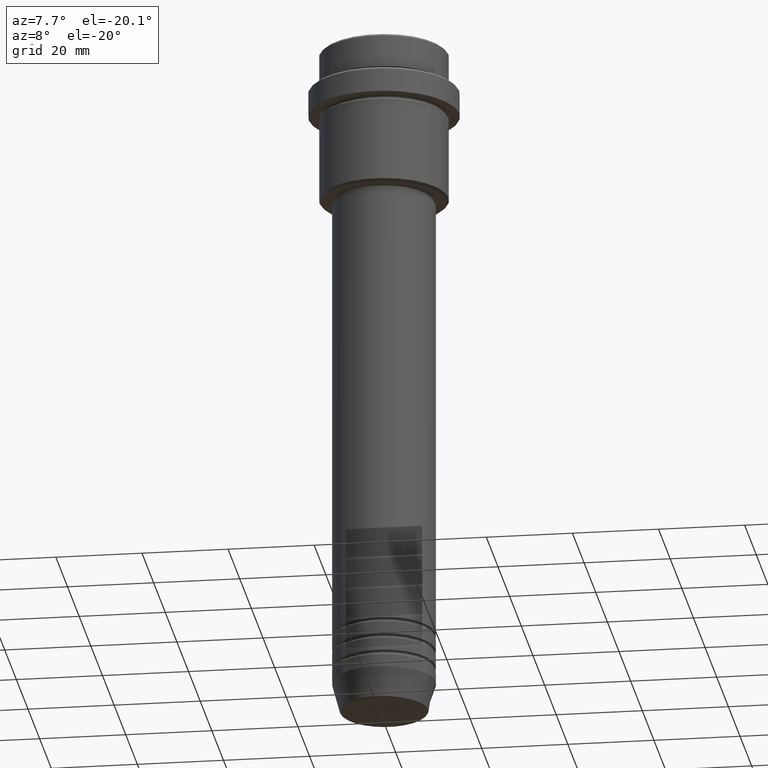
[diagram: clean part render]
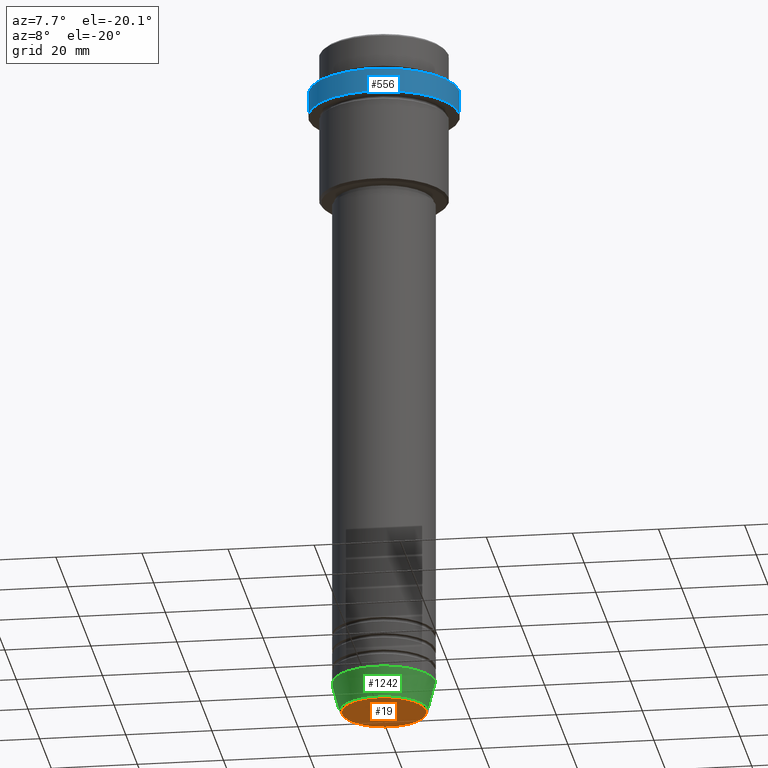
[diagram: same view with three faces highlighted in distinct colors, each labeled with its STEP entity id]
A machine part, auxiliary view with three faces highlighted in distinct colors.
Their STEP definitions:

[orange] entity #19 — the highlighted planar face has unit normal (0, -0, 1).
#7 = EDGE_CURVE ( 'NONE', #669, #570, #861, .T. ) ;
#19 = ADVANCED_FACE ( 'NONE', ( #1362 ), #922, .F. ) ;
#32 = CARTESIAN_POINT ( 'NONE',  ( 0.000000000000000000, 0.000000000000000000, -160.9999999999999716 ) ) ;
#115 = CARTESIAN_POINT ( 'NONE',  ( 0.000000000000000000, 0.000000000000000000, -160.9999999999999716 ) ) ;
#390 = EDGE_CURVE ( 'NONE', #570, #669, #1404, .T. ) ;
#444 = DIRECTION ( 'NONE',  ( 0.000000000000000000, 0.000000000000000000, -1.000000000000000000 ) ) ;
#480 = EDGE_LOOP ( 'NONE', ( #988, #1346 ) ) ;
#484 = DIRECTION ( 'NONE',  ( 1.000000000000000000, 0.000000000000000000, 0.000000000000000000 ) ) ;
#506 = CARTESIAN_POINT ( 'NONE',  ( 9.740692158992667160, 0.000000000000000000, -160.9999999999999716 ) ) ;
#541 = CARTESIAN_POINT ( 'NONE',  ( -9.740692158992667160, 1.222463696683475393E-15, -160.9999999999999716 ) ) ;
#570 = VERTEX_POINT ( 'NONE', #506 ) ;
#596 = CARTESIAN_POINT ( 'NONE',  ( 0.000000000000000000, 0.000000000000000000, -160.9999999999999716 ) ) ;
#627 = AXIS2_PLACEMENT_3D ( 'NONE', #32, #688, #1027 ) ;
#653 = AXIS2_PLACEMENT_3D ( 'NONE', #115, #444, #885 ) ;
#669 = VERTEX_POINT ( 'NONE', #541 ) ;
#688 = DIRECTION ( 'NONE',  ( 0.000000000000000000, 0.000000000000000000, -1.000000000000000000 ) ) ;
#861 = CIRCLE ( 'NONE', #627, 9.740692158992667160 ) ;
#885 = DIRECTION ( 'NONE',  ( 1.000000000000000000, 0.000000000000000000, 0.000000000000000000 ) ) ;
#922 = PLANE ( 'NONE',  #1130 ) ;
#988 = ORIENTED_EDGE ( 'NONE', *, *, #390, .T. ) ;
#1027 = DIRECTION ( 'NONE',  ( 1.000000000000000000, 0.000000000000000000, 0.000000000000000000 ) ) ;
#1130 = AXIS2_PLACEMENT_3D ( 'NONE', #596, #1232, #484 ) ;
#1232 = DIRECTION ( 'NONE',  ( 0.000000000000000000, -0.000000000000000000, 1.000000000000000000 ) ) ;
#1346 = ORIENTED_EDGE ( 'NONE', *, *, #7, .T. ) ;
#1362 = FACE_OUTER_BOUND ( 'NONE', #480, .T. ) ;
#1404 = CIRCLE ( 'NONE', #653, 9.740692158992667160 ) ;

[blue] entity #556 — the highlighted cylindrical surface (partial cylindrical patch) has radius 17.5 mm, axis along (-0, -0, 1).
#40 = AXIS2_PLACEMENT_3D ( 'NONE', #1303, #247, #881 ) ;
#77 = EDGE_CURVE ( 'NONE', #876, #202, #1286, .T. ) ;
#119 = VERTEX_POINT ( 'NONE', #1244 ) ;
#202 = VERTEX_POINT ( 'NONE', #1173 ) ;
#247 = DIRECTION ( 'NONE',  ( -0.000000000000000000, -0.000000000000000000, 1.000000000000000000 ) ) ;
#250 = CARTESIAN_POINT ( 'NONE',  ( 17.50000000000000000, 0.000000000000000000, -9.500000000000014211 ) ) ;
#315 = CARTESIAN_POINT ( 'NONE',  ( -17.50000000000000000, 2.143131898507868248E-15, -15.00000000000000000 ) ) ;
#340 = VERTEX_POINT ( 'NONE', #315 ) ;
#367 = CARTESIAN_POINT ( 'NONE',  ( 0.000000000000000000, 0.000000000000000000, -9.500000000000014211 ) ) ;
#385 = VECTOR ( 'NONE', #1176, 1000.000000000000000 ) ;
#405 = DIRECTION ( 'NONE',  ( -0.000000000000000000, -0.000000000000000000, 1.000000000000000000 ) ) ;
#418 = LINE ( 'NONE', #1061, #1025 ) ;
#482 = DIRECTION ( 'NONE',  ( -0.000000000000000000, -0.000000000000000000, 1.000000000000000000 ) ) ;
#489 = AXIS2_PLACEMENT_3D ( 'NONE', #367, #805, #1237 ) ;
#509 = ORIENTED_EDGE ( 'NONE', *, *, #1218, .T. ) ;
#556 = ADVANCED_FACE ( 'NONE', ( #825 ), #1032, .T. ) ;
#739 = CARTESIAN_POINT ( 'NONE',  ( 17.50000000000000000, 0.000000000000000000, 0.000000000000000000 ) ) ;
#805 = DIRECTION ( 'NONE',  ( 0.000000000000000000, 0.000000000000000000, -1.000000000000000000 ) ) ;
#825 = FACE_OUTER_BOUND ( 'NONE', #869, .T. ) ;
#832 = DIRECTION ( 'NONE',  ( 1.000000000000000000, 0.000000000000000000, 0.000000000000000000 ) ) ;
#869 = EDGE_LOOP ( 'NONE', ( #1009, #509, #1077, #887 ) ) ;
#876 = VERTEX_POINT ( 'NONE', #250 ) ;
#881 = DIRECTION ( 'NONE',  ( 1.000000000000000000, 0.000000000000000000, 0.000000000000000000 ) ) ;
#887 = ORIENTED_EDGE ( 'NONE', *, *, #77, .T. ) ;
#1009 = ORIENTED_EDGE ( 'NONE', *, *, #1031, .F. ) ;
#1025 = VECTOR ( 'NONE', #405, 1000.000000000000000 ) ;
#1031 = EDGE_CURVE ( 'NONE', #340, #202, #418, .T. ) ;
#1032 = CYLINDRICAL_SURFACE ( 'NONE', #1134, 17.50000000000000000 ) ;
#1061 = CARTESIAN_POINT ( 'NONE',  ( -17.50000000000000000, 2.143131898507868248E-15, 0.000000000000000000 ) ) ;
#1077 = ORIENTED_EDGE ( 'NONE', *, *, #1143, .T. ) ;
#1134 = AXIS2_PLACEMENT_3D ( 'NONE', #1344, #482, #832 ) ;
#1143 = EDGE_CURVE ( 'NONE', #119, #876, #1389, .T. ) ;
#1173 = CARTESIAN_POINT ( 'NONE',  ( -17.50000000000000000, 2.143131898507868248E-15, -9.500000000000014211 ) ) ;
#1176 = DIRECTION ( 'NONE',  ( -0.000000000000000000, -0.000000000000000000, 1.000000000000000000 ) ) ;
#1183 = CIRCLE ( 'NONE', #40, 17.50000000000000000 ) ;
#1218 = EDGE_CURVE ( 'NONE', #340, #119, #1183, .T. ) ;
#1237 = DIRECTION ( 'NONE',  ( 1.000000000000000000, 0.000000000000000000, 0.000000000000000000 ) ) ;
#1244 = CARTESIAN_POINT ( 'NONE',  ( 17.50000000000000000, 0.000000000000000000, -15.00000000000000000 ) ) ;
#1286 = CIRCLE ( 'NONE', #489, 17.50000000000000000 ) ;
#1303 = CARTESIAN_POINT ( 'NONE',  ( 0.000000000000000000, 0.000000000000000000, -15.00000000000000000 ) ) ;
#1344 = CARTESIAN_POINT ( 'NONE',  ( 0.000000000000000000, 0.000000000000000000, 0.000000000000000000 ) ) ;
#1389 = LINE ( 'NONE', #739, #385 ) ;

[green] entity #1242 — the highlighted conical surface has half-angle 15 deg.
#16 = VERTEX_POINT ( 'NONE', #798 ) ;
#50 = DIRECTION ( 'NONE',  ( 0.2588190451025213501, 0.000000000000000000, 0.9659258262890680902 ) ) ;
#88 = AXIS2_PLACEMENT_3D ( 'NONE', #986, #1322, #324 ) ;
#112 = EDGE_CURVE ( 'NONE', #939, #174, #1350, .T. ) ;
#120 = DIRECTION ( 'NONE',  ( 1.000000000000000000, 0.000000000000000000, 0.000000000000000000 ) ) ;
#121 = DIRECTION ( 'NONE',  ( -0.000000000000000000, -0.000000000000000000, 1.000000000000000000 ) ) ;
#168 = DIRECTION ( 'NONE',  ( -0.2588190451025213501, 3.169619151431772337E-17, 0.9659258262890680902 ) ) ;
#174 = VERTEX_POINT ( 'NONE', #856 ) ;
#221 = AXIS2_PLACEMENT_3D ( 'NONE', #240, #342, #120 ) ;
#240 = CARTESIAN_POINT ( 'NONE',  ( 0.000000000000000000, 0.000000000000000000, -154.0000000000000000 ) ) ;
#242 = VECTOR ( 'NONE', #50, 1000.000000000000000 ) ;
#260 = CARTESIAN_POINT ( 'NONE',  ( -12.00000000000000000, 1.469576158976823947E-15, -154.0000000000000000 ) ) ;
#321 = EDGE_CURVE ( 'NONE', #344, #939, #1155, .T. ) ;
#322 = CARTESIAN_POINT ( 'NONE',  ( -10.22365507213719837, 1.360806402472383336E-15, -160.6294095225512422 ) ) ;
#324 = DIRECTION ( 'NONE',  ( 1.000000000000000000, 0.000000000000000000, 0.000000000000000000 ) ) ;
#342 = DIRECTION ( 'NONE',  ( -0.000000000000000000, -0.000000000000000000, 1.000000000000000000 ) ) ;
#344 = VERTEX_POINT ( 'NONE', #322 ) ;
#430 = CIRCLE ( 'NONE', #221, 12.00000000000000000 ) ;
#780 = DIRECTION ( 'NONE',  ( 1.000000000000000000, 0.000000000000000000, 0.000000000000000000 ) ) ;
#798 = CARTESIAN_POINT ( 'NONE',  ( -12.00000000000000000, 1.469576158976823947E-15, -154.0000000000000000 ) ) ;
#820 = EDGE_CURVE ( 'NONE', #16, #174, #430, .T. ) ;
#856 = CARTESIAN_POINT ( 'NONE',  ( 12.00000000000000000, 0.000000000000000000, -154.0000000000000000 ) ) ;
#898 = FACE_OUTER_BOUND ( 'NONE', #985, .T. ) ;
#939 = VERTEX_POINT ( 'NONE', #946 ) ;
#946 = CARTESIAN_POINT ( 'NONE',  ( 10.22365507213719660, 0.000000000000000000, -160.6294095225512422 ) ) ;
#981 = VECTOR ( 'NONE', #168, 1000.000000000000000 ) ;
#985 = EDGE_LOOP ( 'NONE', ( #1216, #1106, #1029, #1302 ) ) ;
#986 = CARTESIAN_POINT ( 'NONE',  ( 0.000000000000000000, 0.000000000000000000, -154.0000000000000000 ) ) ;
#987 = EDGE_CURVE ( 'NONE', #344, #16, #1240, .T. ) ;
#997 = CARTESIAN_POINT ( 'NONE',  ( 0.000000000000000000, 0.000000000000000000, -160.6294095225512422 ) ) ;
#1029 = ORIENTED_EDGE ( 'NONE', *, *, #112, .T. ) ;
#1106 = ORIENTED_EDGE ( 'NONE', *, *, #321, .T. ) ;
#1155 = CIRCLE ( 'NONE', #1403, 10.22365507213719660 ) ;
#1216 = ORIENTED_EDGE ( 'NONE', *, *, #987, .F. ) ;
#1240 = LINE ( 'NONE', #260, #981 ) ;
#1242 = ADVANCED_FACE ( 'NONE', ( #898 ), #1408, .T. ) ;
#1302 = ORIENTED_EDGE ( 'NONE', *, *, #820, .F. ) ;
#1322 = DIRECTION ( 'NONE',  ( -0.000000000000000000, -0.000000000000000000, 1.000000000000000000 ) ) ;
#1345 = CARTESIAN_POINT ( 'NONE',  ( 12.00000000000000000, 0.000000000000000000, -154.0000000000000000 ) ) ;
#1350 = LINE ( 'NONE', #1345, #242 ) ;
#1403 = AXIS2_PLACEMENT_3D ( 'NONE', #997, #121, #780 ) ;
#1408 = CONICAL_SURFACE ( 'NONE', #88, 12.00000000000000000, 0.2617993877991500740 ) ;